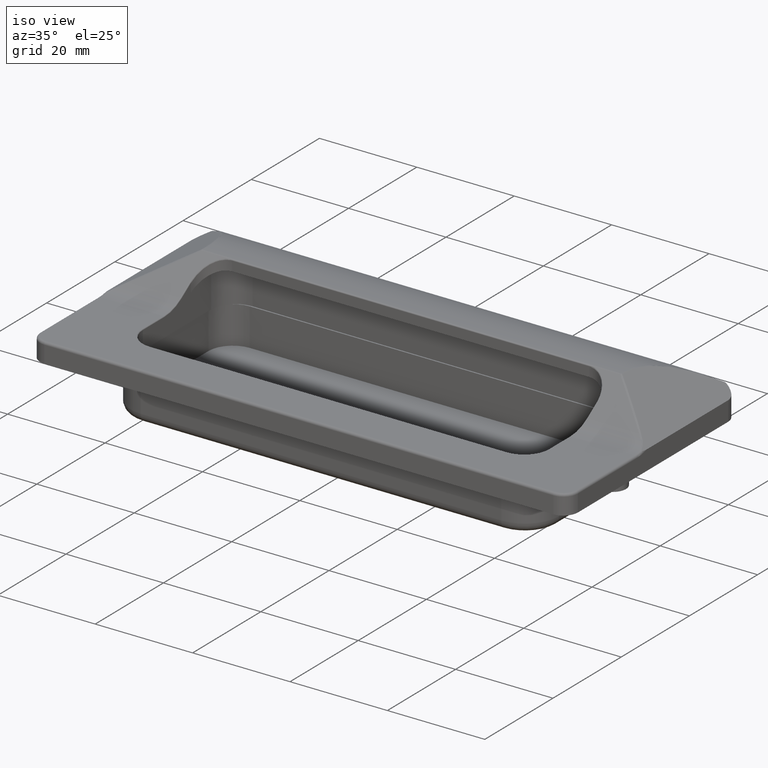
[diagram: clean part render]
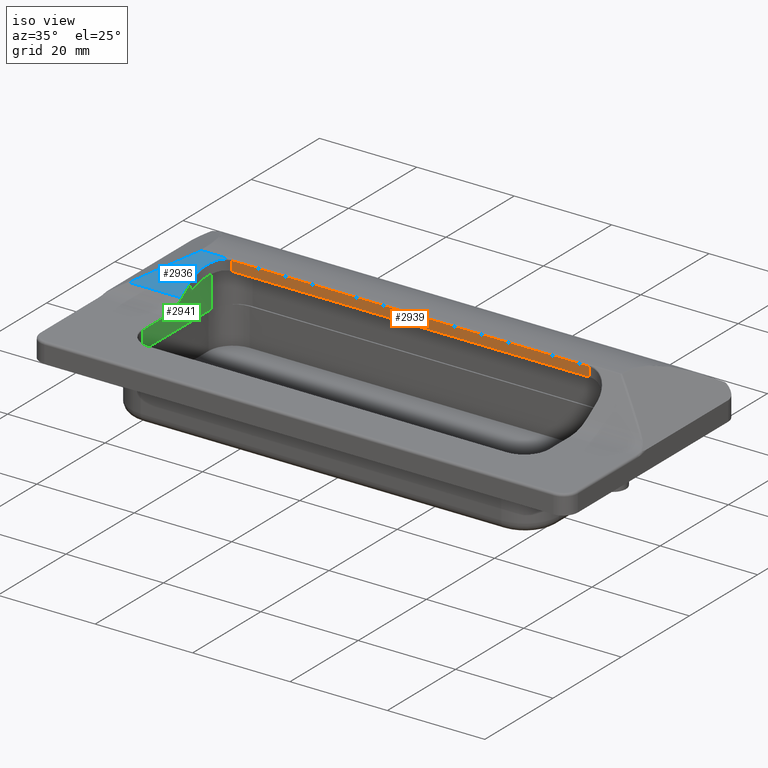
[diagram: same view with three faces highlighted in distinct colors, each labeled with its STEP entity id]
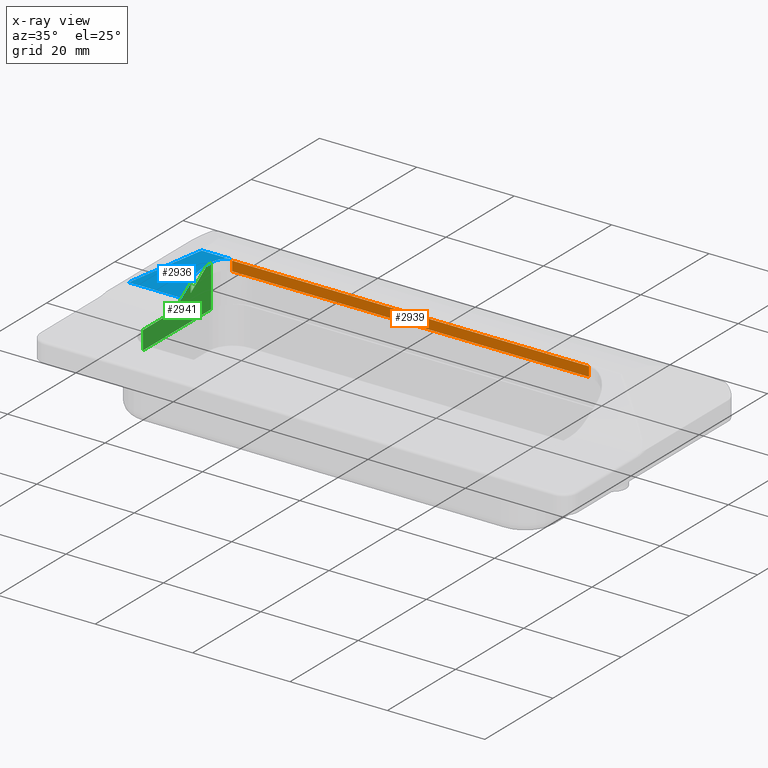
[diagram: x-ray of the same camera — body ghosted, the three highlighted faces saturated]
A machine part, iso view with three faces highlighted in distinct colors.
The next image is the same camera in x-ray (body ghosted, the three faces saturated) — at least one of them is partly hidden behind the body in this view.
Their STEP definitions:

[orange] entity #2939 — the highlighted planar face has unit normal (-0, 1, 0).
#52=PLANE('',#3147);
#152=LINE('',#4618,#390);
#162=LINE('',#4651,#400);
#164=LINE('',#4666,#402);
#165=LINE('',#4667,#403);
#390=VECTOR('',#3539,73.3);
#400=VECTOR('',#3571,1.9830628903501);
#402=VECTOR('',#3575,1.98306289035009);
#403=VECTOR('',#3576,73.3);
#731=FACE_OUTER_BOUND('',#908,.T.);
#908=EDGE_LOOP('',(#2096,#2097,#2098,#2099));
#1293=VERTEX_POINT('',#4578);
#1296=VERTEX_POINT('',#4606);
#1308=VERTEX_POINT('',#4650);
#1310=VERTEX_POINT('',#4665);
#1598=EDGE_CURVE('',#1293,#1296,#152,.T.);
#1614=EDGE_CURVE('',#1308,#1296,#162,.T.);
#1617=EDGE_CURVE('',#1310,#1293,#164,.T.);
#1618=EDGE_CURVE('',#1308,#1310,#165,.T.);
#2096=ORIENTED_EDGE('',*,*,#1598,.F.);
#2097=ORIENTED_EDGE('',*,*,#1617,.F.);
#2098=ORIENTED_EDGE('',*,*,#1618,.F.);
#2099=ORIENTED_EDGE('',*,*,#1614,.T.);
#2939=ADVANCED_FACE('',(#731),#52,.F.);
#3147=AXIS2_PLACEMENT_3D('',#4664,#3573,#3574);
#3539=DIRECTION('',(1.,1.21170316466593E-16,7.96863463894172E-17));
#3571=DIRECTION('',(0.,0.,1.));
#3573=DIRECTION('center_axis',(-1.21170316466593E-16,1.,0.));
#3574=DIRECTION('ref_axis',(-1.,0.,0.));
#3575=DIRECTION('',(0.,0.,1.));
#3576=DIRECTION('',(-1.,0.,0.));
#4578=CARTESIAN_POINT('',(-36.65,32.8,6.75373589457216));
#4606=CARTESIAN_POINT('',(36.65,32.8,6.75373589457216));
#4618=CARTESIAN_POINT('',(2.42340632933186E-17,32.8,6.75373589457215));
#4650=CARTESIAN_POINT('',(36.65,32.8,4.77067300422206));
#4651=CARTESIAN_POINT('',(36.65,32.8,-4.));
#4664=CARTESIAN_POINT('Origin',(36.65,32.8,-4.));
#4665=CARTESIAN_POINT('',(-36.65,32.8,4.77067300422206));
#4666=CARTESIAN_POINT('',(-36.65,32.8,-4.));
#4667=CARTESIAN_POINT('',(0.,32.8,4.77067300422206));

[blue] entity #2936 — the highlighted cylindrical surface (partial cylindrical patch) has radius 250.567 mm, axis along (1, 0, 0).
#120=ELLIPSE('',#3143,501.884333137274,250.567073170605);
#159=LINE('',#4641,#397);
#160=LINE('',#4644,#398);
#397=VECTOR('',#3560,6.01846162785241);
#398=VECTOR('',#3563,10.5249358229988);
#626=CYLINDRICAL_SURFACE('',#3142,250.567073170605);
#728=FACE_OUTER_BOUND('',#905,.T.);
#905=EDGE_LOOP('',(#2081,#2082,#2083,#2084,#2085));
#1084=B_SPLINE_CURVE_WITH_KNOTS('',3,(#4547,#4548,#4549,#4550,#4551,#4552),
 .UNSPECIFIED.,.F.,.F.,(4,1,1,4),(-0.875948681792213,-0.625677629851582,
-0.375406577910951,-4.94433800565959E-15),.UNSPECIFIED.);
#1123=CIRCLE('',#3127,250.567073170605);
#1288=VERTEX_POINT('',#4504);
#1290=VERTEX_POINT('',#4510);
#1292=VERTEX_POINT('',#4545);
#1305=VERTEX_POINT('',#4640);
#1306=VERTEX_POINT('',#4642);
#1584=EDGE_CURVE('',#1290,#1288,#1123,.T.);
#1587=EDGE_CURVE('',#1292,#1290,#1084,.T.);
#1609=EDGE_CURVE('',#1292,#1305,#159,.T.);
#1610=EDGE_CURVE('',#1305,#1306,#120,.T.);
#1611=EDGE_CURVE('',#1288,#1306,#160,.T.);
#2081=ORIENTED_EDGE('',*,*,#1587,.F.);
#2082=ORIENTED_EDGE('',*,*,#1609,.T.);
#2083=ORIENTED_EDGE('',*,*,#1610,.T.);
#2084=ORIENTED_EDGE('',*,*,#1611,.F.);
#2085=ORIENTED_EDGE('',*,*,#1584,.F.);
#2936=ADVANCED_FACE('',(#728),#626,.F.);
#3127=AXIS2_PLACEMENT_3D('',#4512,#3520,#3521);
#3142=AXIS2_PLACEMENT_3D('',#4639,#3558,#3559);
#3143=AXIS2_PLACEMENT_3D('',#4643,#3561,#3562);
#3520=DIRECTION('center_axis',(-1.,-1.94289029309402E-16,0.));
#3521=DIRECTION('ref_axis',(-1.08001765287064E-16,0.556058606600162,-0.831143083966826));
#3558=DIRECTION('center_axis',(1.,0.,0.));
#3559=DIRECTION('ref_axis',(0.,-0.550458715596322,0.834862385321106));
#3560=DIRECTION('',(-1.,0.,0.));
#3561=DIRECTION('center_axis',(-0.499252629792831,-1.9363970425334E-16,
0.866456468407353));
#3562=DIRECTION('ref_axis',(-0.866456468407353,3.53937495577171E-17,-0.499252629792831));
#3563=DIRECTION('',(-1.,0.,0.));
#4504=CARTESIAN_POINT('',(-41.85,25.,1.5));
#4510=CARTESIAN_POINT('',(-41.85,27.6877629128187,3.29713780090186));
#4512=CARTESIAN_POINT('Origin',(-41.85,-112.926829268221,210.68902439014));
#4545=CARTESIAN_POINT('',(-36.9678710497257,32.8738987237649,6.90971760387556));
#4547=CARTESIAN_POINT('Ctrl Pts',(-36.9678710496816,32.8738987232877,6.90971760353415));
#4548=CARTESIAN_POINT('Ctrl Pts',(-37.7998489819646,32.822986053018,6.87329042892858));
#4549=CARTESIAN_POINT('Ctrl Pts',(-39.4078680113746,32.3032807614942,6.50088222219702));
#4550=CARTESIAN_POINT('Ctrl Pts',(-41.3382940219261,30.442487066334,5.18539026274955));
#4551=CARTESIAN_POINT('Ctrl Pts',(-41.85,28.7226712236345,3.9988200723899));
#4552=CARTESIAN_POINT('Ctrl Pts',(-41.85,27.6877629128187,3.29713780090187));
#4639=CARTESIAN_POINT('Origin',(0.,-112.926829268221,210.68902439014));
#4640=CARTESIAN_POINT('',(-42.9863326775782,32.8738987242447,6.90971760421887));
#4641=CARTESIAN_POINT('',(0.,32.8738987242447,6.90971760421888));
#4642=CARTESIAN_POINT('',(-52.3749358229988,25.,1.5));
#4643=CARTESIAN_POINT('Origin',(310.674094840841,-112.926829268221,210.68902439014));
#4644=CARTESIAN_POINT('',(0.,25.,1.5));

[green] entity #2941 — the highlighted planar face has unit normal (-1, -0, 0).
#53=PLANE('',#3149);
#149=LINE('',#4498,#387);
#166=LINE('',#4670,#404);
#167=LINE('',#4683,#405);
#168=LINE('',#4685,#406);
#169=LINE('',#4687,#407);
#387=VECTOR('',#3504,6.2);
#404=VECTOR('',#3579,1.8098023627244);
#405=VECTOR('',#3582,3.8);
#406=VECTOR('',#3583,20.);
#407=VECTOR('',#3584,9.3058720326707);
#733=FACE_OUTER_BOUND('',#910,.T.);
#910=EDGE_LOOP('',(#2105,#2106,#2107,#2108,#2109,#2110,#2111,#2112,#2113));
#1121=CIRCLE('',#3124,9.28333333333334);
#1124=CIRCLE('',#3128,250.767073170605);
#1133=CIRCLE('',#3150,25.4715425206513);
#1134=CIRCLE('',#3151,252.267073170605);
#1284=VERTEX_POINT('',#4495);
#1285=VERTEX_POINT('',#4497);
#1287=VERTEX_POINT('',#4503);
#1289=VERTEX_POINT('',#4509);
#1311=VERTEX_POINT('',#4669);
#1312=VERTEX_POINT('',#4682);
#1313=VERTEX_POINT('',#4684);
#1314=VERTEX_POINT('',#4686);
#1315=VERTEX_POINT('',#4688);
#1577=EDGE_CURVE('',#1284,#1285,#149,.T.);
#1582=EDGE_CURVE('',#1285,#1287,#1121,.T.);
#1585=EDGE_CURVE('',#1287,#1289,#1124,.T.);
#1619=EDGE_CURVE('',#1311,#1289,#166,.T.);
#1621=EDGE_CURVE('',#1312,#1284,#167,.T.);
#1622=EDGE_CURVE('',#1313,#1312,#168,.T.);
#1623=EDGE_CURVE('',#1313,#1314,#169,.T.);
#1624=EDGE_CURVE('',#1315,#1314,#1133,.T.);
#1625=EDGE_CURVE('',#1311,#1315,#1134,.T.);
#2105=ORIENTED_EDGE('',*,*,#1585,.F.);
#2106=ORIENTED_EDGE('',*,*,#1582,.F.);
#2107=ORIENTED_EDGE('',*,*,#1577,.F.);
#2108=ORIENTED_EDGE('',*,*,#1621,.F.);
#2109=ORIENTED_EDGE('',*,*,#1622,.F.);
#2110=ORIENTED_EDGE('',*,*,#1623,.T.);
#2111=ORIENTED_EDGE('',*,*,#1624,.F.);
#2112=ORIENTED_EDGE('',*,*,#1625,.F.);
#2113=ORIENTED_EDGE('',*,*,#1619,.T.);
#2941=ADVANCED_FACE('',(#733),#53,.F.);
#3124=AXIS2_PLACEMENT_3D('',#4507,#3514,#3515);
#3128=AXIS2_PLACEMENT_3D('',#4513,#3522,#3523);
#3149=AXIS2_PLACEMENT_3D('',#4681,#3580,#3581);
#3150=AXIS2_PLACEMENT_3D('',#4689,#3585,#3586);
#3151=AXIS2_PLACEMENT_3D('',#4690,#3587,#3588);
#3504=DIRECTION('',(-1.94289029309402E-16,1.,0.));
#3514=DIRECTION('center_axis',(1.,1.94289029309402E-16,0.));
#3515=DIRECTION('ref_axis',(-5.58285417607946E-17,0.287347885566346,-0.957826285221151));
#3522=DIRECTION('center_axis',(1.,1.94289029309402E-16,0.));
#3523=DIRECTION('ref_axis',(-1.08036086915484E-16,0.556058606600162,-0.831143083966826));
#3579=DIRECTION('',(0.,0.,1.));
#3580=DIRECTION('center_axis',(-1.,-1.94289029309402E-16,0.));
#3581=DIRECTION('ref_axis',(0.,-1.,0.));
#3582=DIRECTION('',(0.,0.,1.));
#3583=DIRECTION('',(1.94289029309402E-16,-1.,-7.44308086801126E-34));
#3584=DIRECTION('',(0.,0.,1.));
#3585=DIRECTION('center_axis',(-1.,-1.94289029309402E-16,0.));
#3586=DIRECTION('ref_axis',(0.,0.603533500453609,0.797337641046886));
#3587=DIRECTION('center_axis',(1.,1.94289029309402E-16,0.));
#3588=DIRECTION('ref_axis',(0.,-0.550458715596322,0.834862385321106));
#4495=CARTESIAN_POINT('',(-41.65,13.8,-0.2));
#4497=CARTESIAN_POINT('',(-41.65,20.,-0.2));
#4498=CARTESIAN_POINT('',(-41.65,26.4,-0.2));
#4503=CARTESIAN_POINT('',(-41.65,25.1100917431193,1.33302752293578));
#4507=CARTESIAN_POINT('Origin',(-41.65,20.,9.08333333333333));
#4509=CARTESIAN_POINT('',(-41.65,27.8,3.13159978031127));
#4513=CARTESIAN_POINT('Origin',(-41.65,-112.926829268221,210.68902439014));
#4669=CARTESIAN_POINT('',(-41.65,27.8,1.32179741758687));
#4670=CARTESIAN_POINT('',(-41.65,27.8,-4.));
#4681=CARTESIAN_POINT('Origin',(-41.65,27.8,-4.));
#4682=CARTESIAN_POINT('',(-41.65,13.8,-4.));
#4683=CARTESIAN_POINT('',(-41.65,13.8,-4.));
#4684=CARTESIAN_POINT('',(-41.65,33.8,-4.));
#4685=CARTESIAN_POINT('',(-41.65,25.8,-4.));
#4686=CARTESIAN_POINT('',(-41.65,33.8,5.3058720326707));
#4687=CARTESIAN_POINT('',(-41.65,33.8,-4.));
#4688=CARTESIAN_POINT('',(-41.65,33.5543587963288,5.30660608404063));
#4689=CARTESIAN_POINT('Origin',(-41.65,33.6010638297872,-20.1648936170213));
#4690=CARTESIAN_POINT('Origin',(-41.65,-112.926829268221,210.68902439014));